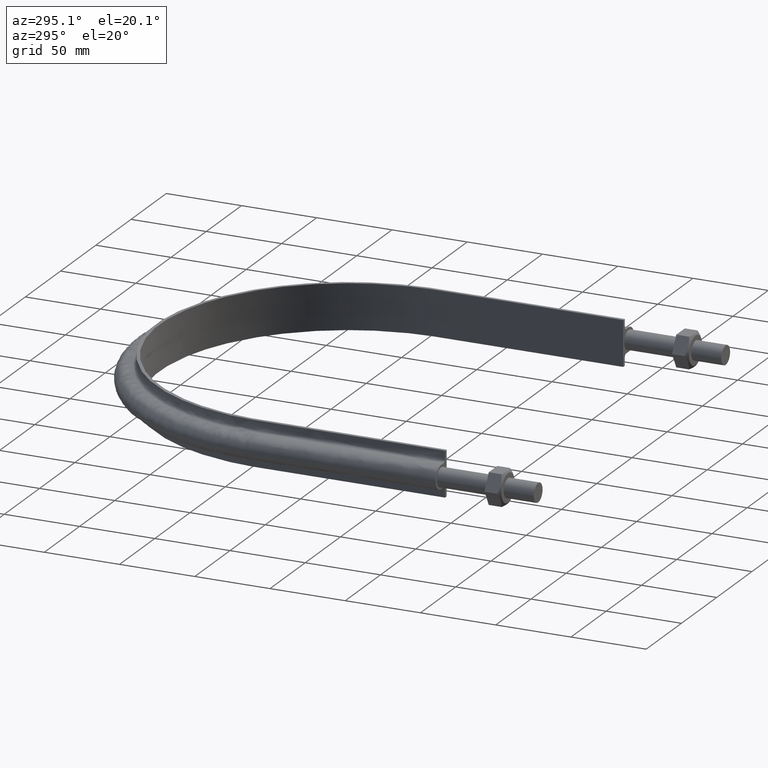
[diagram: clean part render]
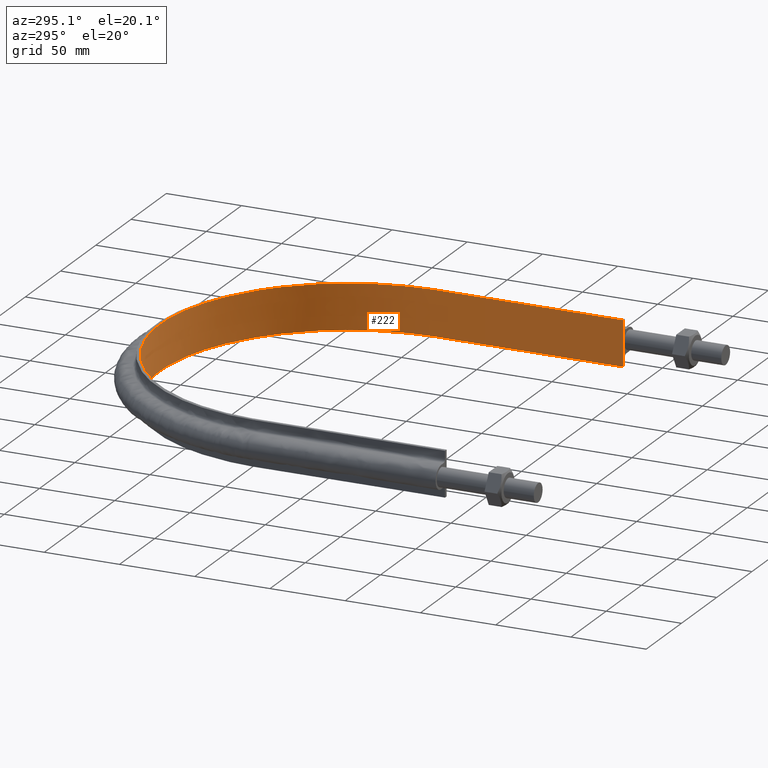
[diagram: same view with one face highlighted and labeled with its STEP entity id]
A machine part, auxiliary view. The second image highlights one B-rep face of the part: STEP entity #222.
In plain terms, the highlighted face is a SurfaceOfExtrusion surface.
Its self-contained STEP definition (entity closure, byte-faithful):
#222 = ADVANCED_FACE( '', ( #270 ), #271, .T. );
#270 = FACE_OUTER_BOUND( '', #378, .T. );
#271 = SURFACE_OF_LINEAR_EXTRUSION( '', #379, #380 );
#378 = EDGE_LOOP( '', ( #1400, #1401, #1402, #1403 ) );
#379 = B_SPLINE_CURVE_WITH_KNOTS( '', 3, ( #1404, #1405, #1406, #1407, #1408, #1409, #1410, #1411, #1412, #1413, #1414, #1415, #1416, #1417, #1418, #1419, #1420 ), .UNSPECIFIED., .F., .F., ( 4, 3, 1, 1, 1, 1, 1, 1, 1, 3, 4 ), ( -10.0000000000000, -9.00000000000000, -8.00000000000000, -7.00000000000000, -6.00000000000000, -5.00000000000000, -4.00000000000000, -3.00000000000000, -2.00000000000000, -1.00000000000000, 0.000000000000000 ), .UNSPECIFIED. );
#380 = VECTOR( '', #1421, 1000.00000000000 );
#1400 = ORIENTED_EDGE( '', *, *, #1661, .F. );
#1401 = ORIENTED_EDGE( '', *, *, #1650, .F. );
#1402 = ORIENTED_EDGE( '', *, *, #1654, .T. );
#1403 = ORIENTED_EDGE( '', *, *, #1658, .T. );
#1404 = CARTESIAN_POINT( '', ( -125.250000000000, 64.5000000000001, -410.168591241883 ) );
#1405 = CARTESIAN_POINT( '', ( -125.250000000000, 105.916666666667, -410.168591241883 ) );
#1406 = CARTESIAN_POINT( '', ( -125.250000000000, 147.333333333333, -410.168591241883 ) );
#1407 = CARTESIAN_POINT( '', ( -125.250000000000, 188.750000000000, -410.168591241883 ) );
#1408 = CARTESIAN_POINT( '', ( -125.250000000000, 205.129602627270, -410.168591241883 ) );
#1409 = CARTESIAN_POINT( '', ( -118.728466915651, 237.935152350602, -410.168591241883 ) );
#1410 = CARTESIAN_POINT( '', ( -90.8708344774529, 279.619162254352, -410.168591241883 ) );
#1411 = CARTESIAN_POINT( '', ( -49.1789412362281, 307.478944693680, -410.168591241883 ) );
#1412 = CARTESIAN_POINT( '', ( -4.44148010487768E-014, 317.260527653160, -410.168591241883 ) );
#1413 = CARTESIAN_POINT( '', ( 49.1789412362279, 307.478944693680, -410.168591241883 ) );
#1414 = CARTESIAN_POINT( '', ( 90.8708344774527, 279.619162254352, -410.168591241883 ) );
#1415 = CARTESIAN_POINT( '', ( 118.728466915651, 237.935152350602, -410.168591241883 ) );
#1416 = CARTESIAN_POINT( '', ( 125.250000000000, 205.129602627270, -410.168591241883 ) );
#1417 = CARTESIAN_POINT( '', ( 125.250000000000, 188.750000000000, -410.168591241883 ) );
#1418 = CARTESIAN_POINT( '', ( 125.250000000000, 147.333333333333, -410.168591241883 ) );
#1419 = CARTESIAN_POINT( '', ( 125.250000000000, 105.916666666667, -410.168591241883 ) );
#1420 = CARTESIAN_POINT( '', ( 125.250000000000, 64.5000000000000, -410.168591241883 ) );
#1421 = DIRECTION( '', ( 0.000000000000000, 0.000000000000000, 1.00000000000000 ) );
#1650 = EDGE_CURVE( '', #1721, #1722, #1723, .T. );
#1654 = EDGE_CURVE( '', #1721, #1729, #1730, .T. );
#1658 = EDGE_CURVE( '', #1729, #1736, #1737, .T. );
#1661 = EDGE_CURVE( '', #1722, #1736, #1741, .T. );
#1721 = VERTEX_POINT( '', #1845 );
#1722 = VERTEX_POINT( '', #1846 );
#1723 = LINE( '', #1847, #1848 );
#1729 = VERTEX_POINT( '', #1886 );
#1730 = B_SPLINE_CURVE_WITH_KNOTS( '', 3, ( #1887, #1888, #1889, #1890, #1891, #1892, #1893, #1894, #1895, #1896, #1897, #1898, #1899, #1900, #1901, #1902, #1903 ), .UNSPECIFIED., .F., .F., ( 4, 3, 1, 1, 1, 1, 1, 1, 1, 3, 4 ), ( -10.0000000000000, -9.00000000000000, -8.00000000000000, -7.00000000000000, -6.00000000000000, -5.00000000000000, -4.00000000000000, -3.00000000000000, -2.00000000000000, -1.00000000000000, 0.000000000000000 ), .UNSPECIFIED. );
#1736 = VERTEX_POINT( '', #1926 );
#1737 = LINE( '', #1927, #1928 );
#1741 = B_SPLINE_CURVE_WITH_KNOTS( '', 3, ( #1963, #1964, #1965, #1966, #1967, #1968, #1969, #1970, #1971, #1972, #1973, #1974, #1975, #1976, #1977, #1978, #1979 ), .UNSPECIFIED., .F., .F., ( 4, 3, 1, 1, 1, 1, 1, 1, 1, 3, 4 ), ( -10.0000000000000, -9.00000000000000, -8.00000000000000, -7.00000000000000, -6.00000000000000, -5.00000000000000, -4.00000000000000, -3.00000000000000, -2.00000000000000, -1.00000000000000, 0.000000000000000 ), .UNSPECIFIED. );
#1845 = CARTESIAN_POINT( '', ( -125.250000000000, 64.5000000000003, -15.0000000000000 ) );
#1846 = CARTESIAN_POINT( '', ( -125.250000000000, 64.5000000000003, 15.0000000000000 ) );
#1847 = CARTESIAN_POINT( '', ( -125.250000000000, 64.5000000000001, -410.168591241883 ) );
#1848 = VECTOR( '', #2296, 1000.00000000000 );
#1886 = CARTESIAN_POINT( '', ( 125.250000000000, 64.5000000000000, -15.0000000000005 ) );
#1887 = CARTESIAN_POINT( '', ( -125.250000000000, 64.5000000000001, -15.0000000000002 ) );
#1888 = CARTESIAN_POINT( '', ( -125.250000000000, 105.916666666667, -15.0000000000002 ) );
#1889 = CARTESIAN_POINT( '', ( -125.250000000000, 147.333333333333, -15.0000000000002 ) );
#1890 = CARTESIAN_POINT( '', ( -125.250000000000, 188.750000000000, -15.0000000000002 ) );
#1891 = CARTESIAN_POINT( '', ( -125.250000000000, 205.129602627270, -15.0000000000002 ) );
#1892 = CARTESIAN_POINT( '', ( -118.728466915651, 237.935152350602, -15.0000000000002 ) );
#1893 = CARTESIAN_POINT( '', ( -90.8708344774529, 279.619162254352, -15.0000000000002 ) );
#1894 = CARTESIAN_POINT( '', ( -49.1789412362281, 307.478944693680, -15.0000000000002 ) );
#1895 = CARTESIAN_POINT( '', ( -4.44148010487768E-014, 317.260527653160, -15.0000000000002 ) );
#1896 = CARTESIAN_POINT( '', ( 49.1789412362279, 307.478944693680, -15.0000000000002 ) );
#1897 = CARTESIAN_POINT( '', ( 90.8708344774527, 279.619162254352, -15.0000000000002 ) );
#1898 = CARTESIAN_POINT( '', ( 118.728466915651, 237.935152350602, -15.0000000000002 ) );
#1899 = CARTESIAN_POINT( '', ( 125.250000000000, 205.129602627270, -15.0000000000002 ) );
#1900 = CARTESIAN_POINT( '', ( 125.250000000000, 188.750000000000, -15.0000000000002 ) );
#1901 = CARTESIAN_POINT( '', ( 125.250000000000, 147.333333333333, -15.0000000000002 ) );
#1902 = CARTESIAN_POINT( '', ( 125.250000000000, 105.916666666667, -15.0000000000002 ) );
#1903 = CARTESIAN_POINT( '', ( 125.250000000000, 64.5000000000000, -15.0000000000002 ) );
#1926 = CARTESIAN_POINT( '', ( 125.250000000000, 64.5000000000003, 15.0000000000000 ) );
#1927 = CARTESIAN_POINT( '', ( 125.250000000000, 64.5000000000000, -410.168591241883 ) );
#1928 = VECTOR( '', #2303, 1000.00000000000 );
#1963 = CARTESIAN_POINT( '', ( -125.250000000000, 64.5000000000001, 14.9999999999998 ) );
#1964 = CARTESIAN_POINT( '', ( -125.250000000000, 105.916666666667, 14.9999999999998 ) );
#1965 = CARTESIAN_POINT( '', ( -125.250000000000, 147.333333333333, 14.9999999999998 ) );
#1966 = CARTESIAN_POINT( '', ( -125.250000000000, 188.750000000000, 14.9999999999998 ) );
#1967 = CARTESIAN_POINT( '', ( -125.250000000000, 205.129602627270, 14.9999999999998 ) );
#1968 = CARTESIAN_POINT( '', ( -118.728466915651, 237.935152350602, 14.9999999999998 ) );
#1969 = CARTESIAN_POINT( '', ( -90.8708344774529, 279.619162254352, 14.9999999999998 ) );
#1970 = CARTESIAN_POINT( '', ( -49.1789412362281, 307.478944693680, 14.9999999999998 ) );
#1971 = CARTESIAN_POINT( '', ( -4.44148010487768E-014, 317.260527653160, 14.9999999999998 ) );
#1972 = CARTESIAN_POINT( '', ( 49.1789412362279, 307.478944693680, 14.9999999999998 ) );
#1973 = CARTESIAN_POINT( '', ( 90.8708344774527, 279.619162254352, 14.9999999999998 ) );
#1974 = CARTESIAN_POINT( '', ( 118.728466915651, 237.935152350602, 14.9999999999998 ) );
#1975 = CARTESIAN_POINT( '', ( 125.250000000000, 205.129602627270, 14.9999999999998 ) );
#1976 = CARTESIAN_POINT( '', ( 125.250000000000, 188.750000000000, 14.9999999999998 ) );
#1977 = CARTESIAN_POINT( '', ( 125.250000000000, 147.333333333333, 14.9999999999998 ) );
#1978 = CARTESIAN_POINT( '', ( 125.250000000000, 105.916666666667, 14.9999999999998 ) );
#1979 = CARTESIAN_POINT( '', ( 125.250000000000, 64.5000000000000, 14.9999999999998 ) );
#2296 = DIRECTION( '', ( 0.000000000000000, 0.000000000000000, 1.00000000000000 ) );
#2303 = DIRECTION( '', ( 0.000000000000000, 0.000000000000000, 1.00000000000000 ) );